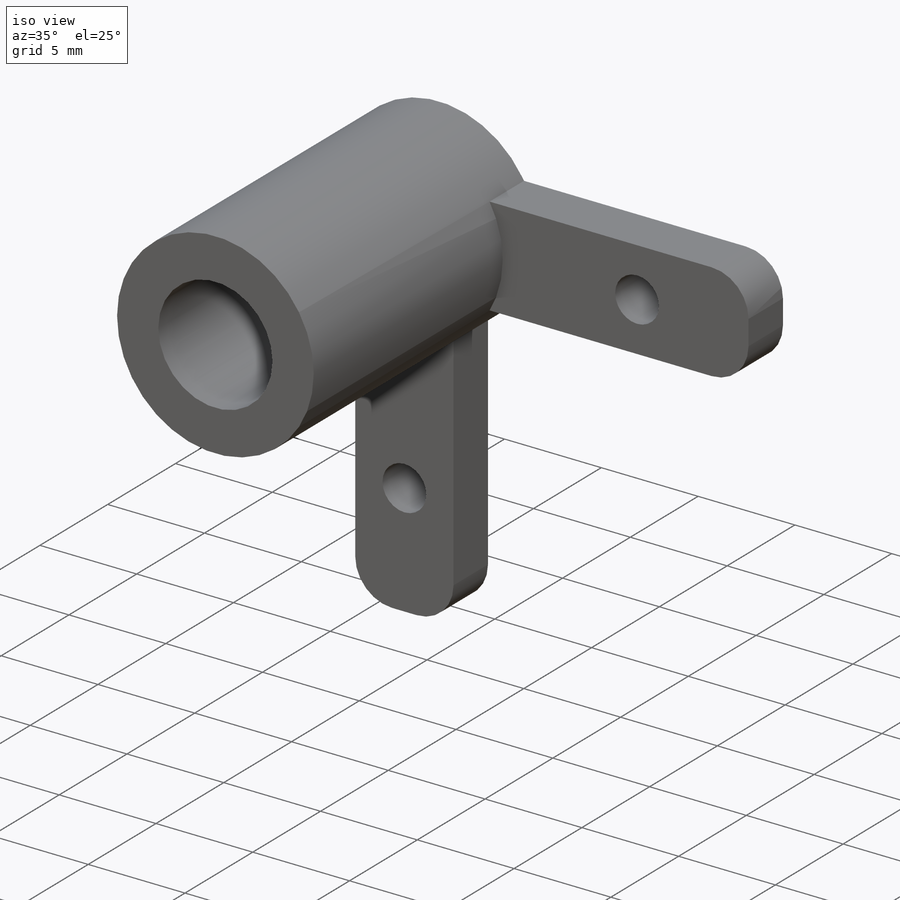
[diagram: iso view]
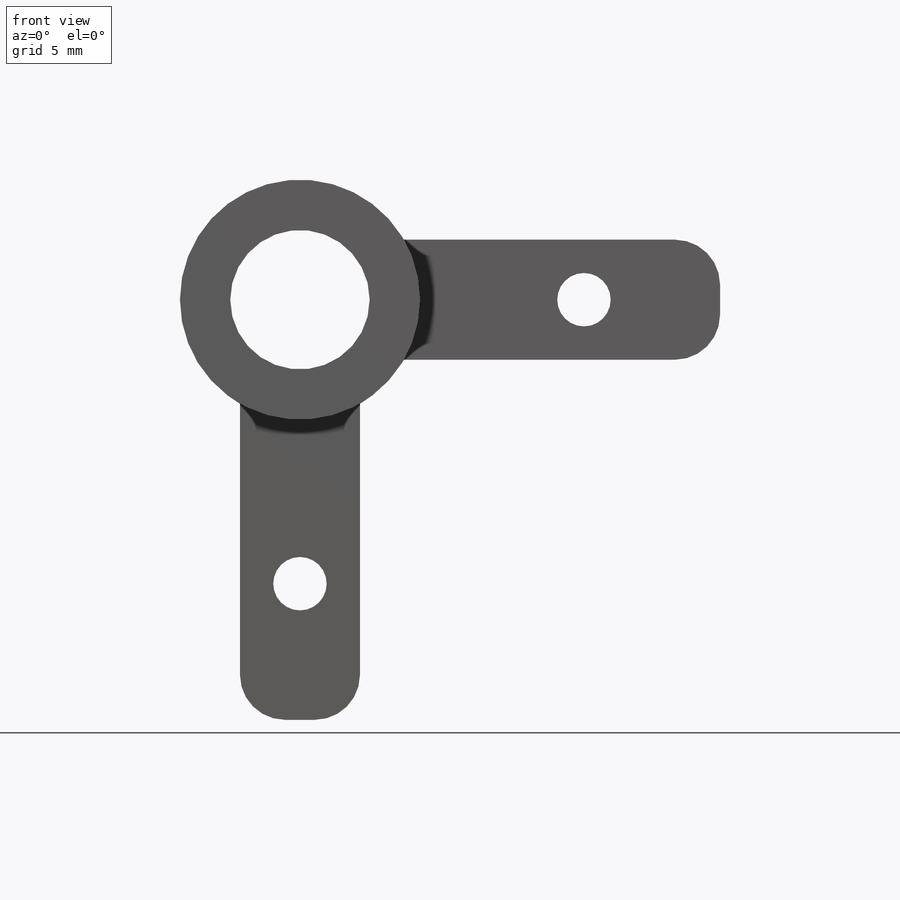
[diagram: front view]
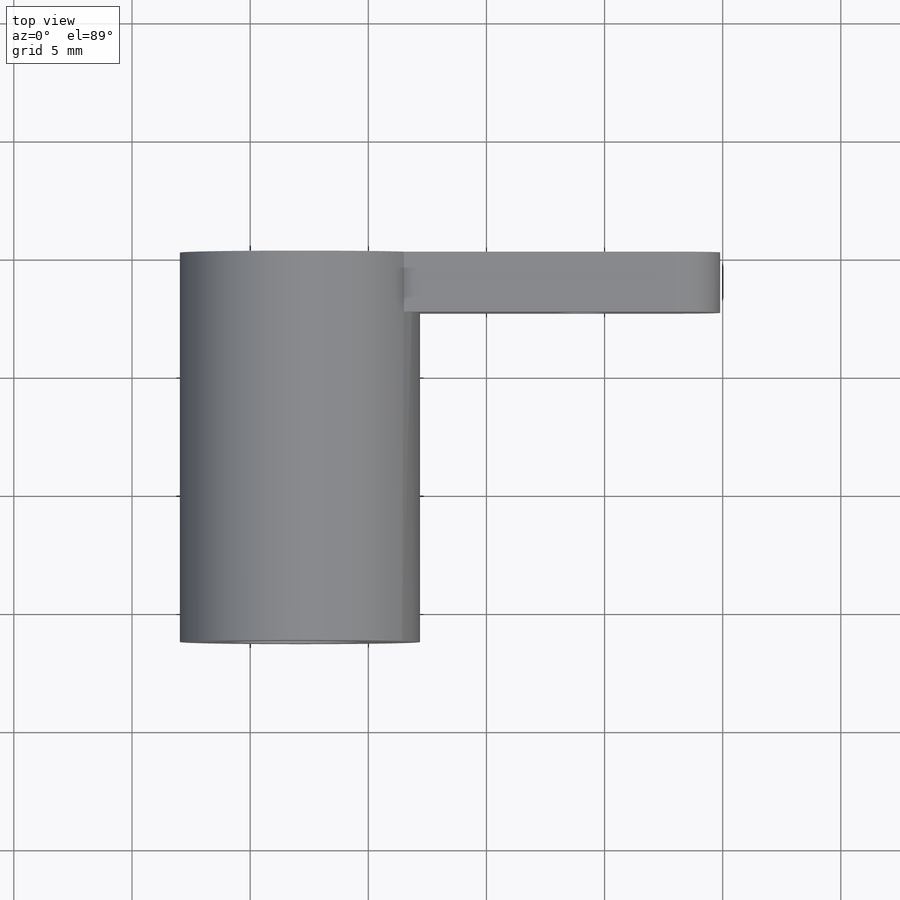
[diagram: top view]
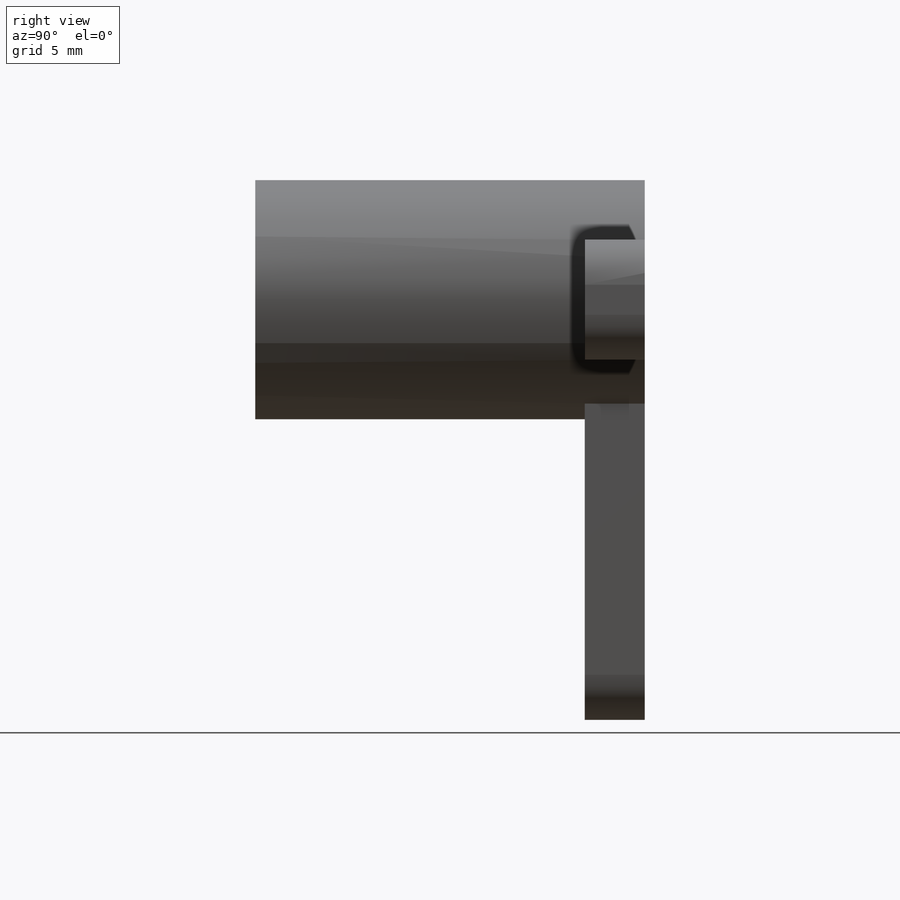
[diagram: right view]
SOLIDWORKS PART (.sldprt)
format: sldprt  version: not decoded by parser v0  size: 220,160 bytes
history: native  units: mm
features: sketch x6, extrude x2, material x1, hole x1, cut_extrude x1, fillet x1 (+16 scaffold rows collapsed)
feature tree (28):
  scaffold x16  (default folders/planes/origin — collapsed)
  material  "Material <not specified>"
  sketch  "Sketch4"  dims[D1=1.27mm]
  extrude  "Extrude2"  Depth=2.54mm
  sketch  "Sketch8"  dims[D1=~12.01928mm]
  sketch  "Sketch5"  dims[D1=~4.522617mm]
  extrude  "Extrude3"  Depth=13.9446mm
  hole  "#43 (0.089) Diameter Hole1"  Diameter=2.2606mm Depth=5.08mm
  sketch  "3DSketch1"
  sketch  "Sketch9"  dims[hole-wizard template sketch: 47 standard entries collapsed; hole parameters kept: c15.Hole Depth=5.08mm c15.D3=~14.816244mm c15.Drill Angle=118.0deg]
  sketch  "Sketch11"  dims[D1=~2.825515mm]
  cut_extrude  "Extrude11"  [1 undecoded]
  fillet  "Fillet1"  Radius=1.905mm
decode coverage: 9 of 11 modeling features carry decoded parameters
note: ~ marks probable driven/reference dimensions
note: 1 parameter value undecoded
note: suppression state not decoded; provenance and decode notes live in map.json
